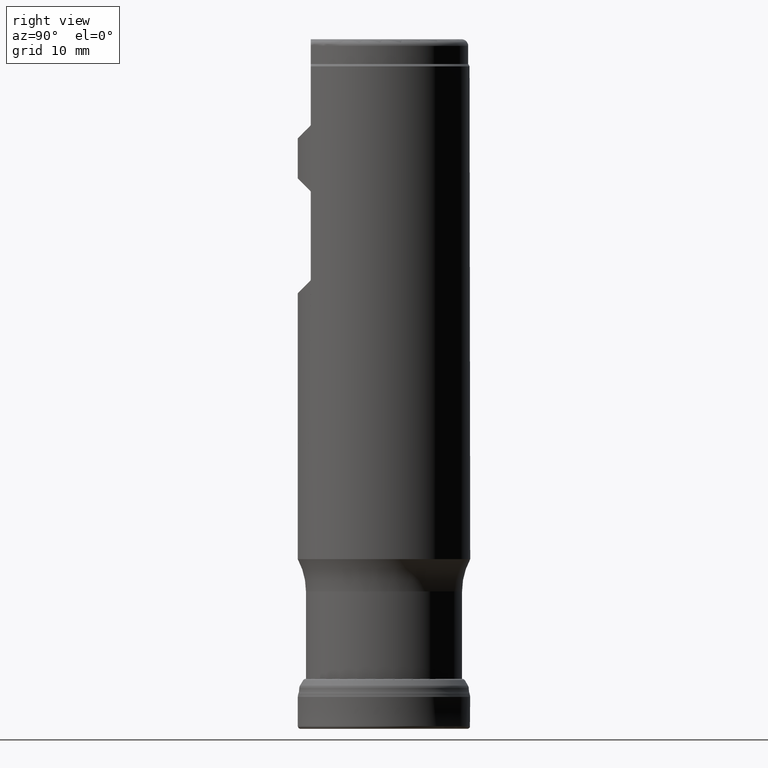
[diagram: clean part render]
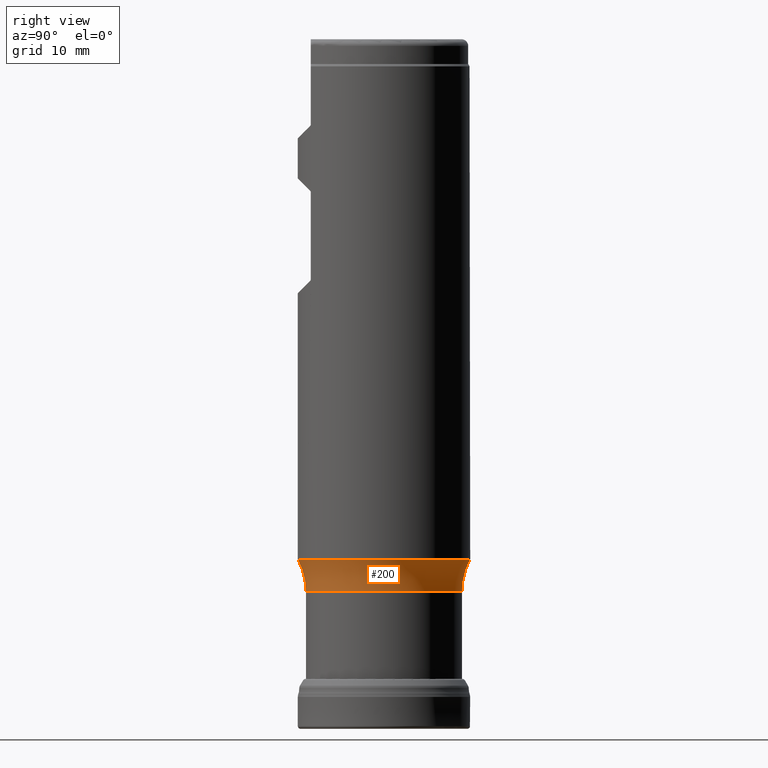
[diagram: same view with one face highlighted and labeled with its STEP entity id]
A machine part, right view. The second image highlights one B-rep face of the part: STEP entity #200.
In plain terms, the highlighted toroidal blend (fillet) surface has major radius 21.5 mm and minor (blend) radius 10 mm.
Its self-contained STEP definition (entity closure, byte-faithful):
#155=TOROIDAL_SURFACE('',#840,21.5,10.);
#200=ADVANCED_FACE('',(#302,#303),#155,.F.);
#302=FACE_BOUND('',#386,.T.);
#303=FACE_BOUND('',#387,.T.);
#386=EDGE_LOOP('',(#498));
#387=EDGE_LOOP('',(#499));
#498=ORIENTED_EDGE('',*,*,#666,.F.);
#499=ORIENTED_EDGE('',*,*,#681,.F.);
#606=VERTEX_POINT('',#1314);
#621=VERTEX_POINT('',#1417);
#666=EDGE_CURVE('',#606,#606,#733,.T.);
#681=EDGE_CURVE('',#621,#621,#735,.T.);
#733=CIRCLE('',#827,11.5);
#735=CIRCLE('',#833,12.7);
#827=AXIS2_PLACEMENT_3D('',#1313,#921,#922);
#833=AXIS2_PLACEMENT_3D('',#1416,#937,#938);
#840=AXIS2_PLACEMENT_3D('',#1454,#953,#954);
#921=DIRECTION('',(0.,-1.17145536458252E-15,-1.));
#922=DIRECTION('',(0.,-1.,1.20676415720126E-15));
#937=DIRECTION('',(0.,1.17145536458252E-15,1.));
#938=DIRECTION('',(0.,-1.,1.09273919746571E-15));
#953=DIRECTION('',(0.,1.17145536458252E-15,1.));
#954=DIRECTION('',(0.,-1.,1.21155290385682E-15));
#1313=CARTESIAN_POINT('',(0.,2.37147821047303E-14,20.2438631651848));
#1314=CARTESIAN_POINT('',(0.,-11.5,20.2438631651848));
#1416=CARTESIAN_POINT('',(0.,2.92788868002298E-14,24.9936));
#1417=CARTESIAN_POINT('',(0.,-12.7,24.9936));
#1454=CARTESIAN_POINT('',(0.,2.37147821047303E-14,20.2438631651848));